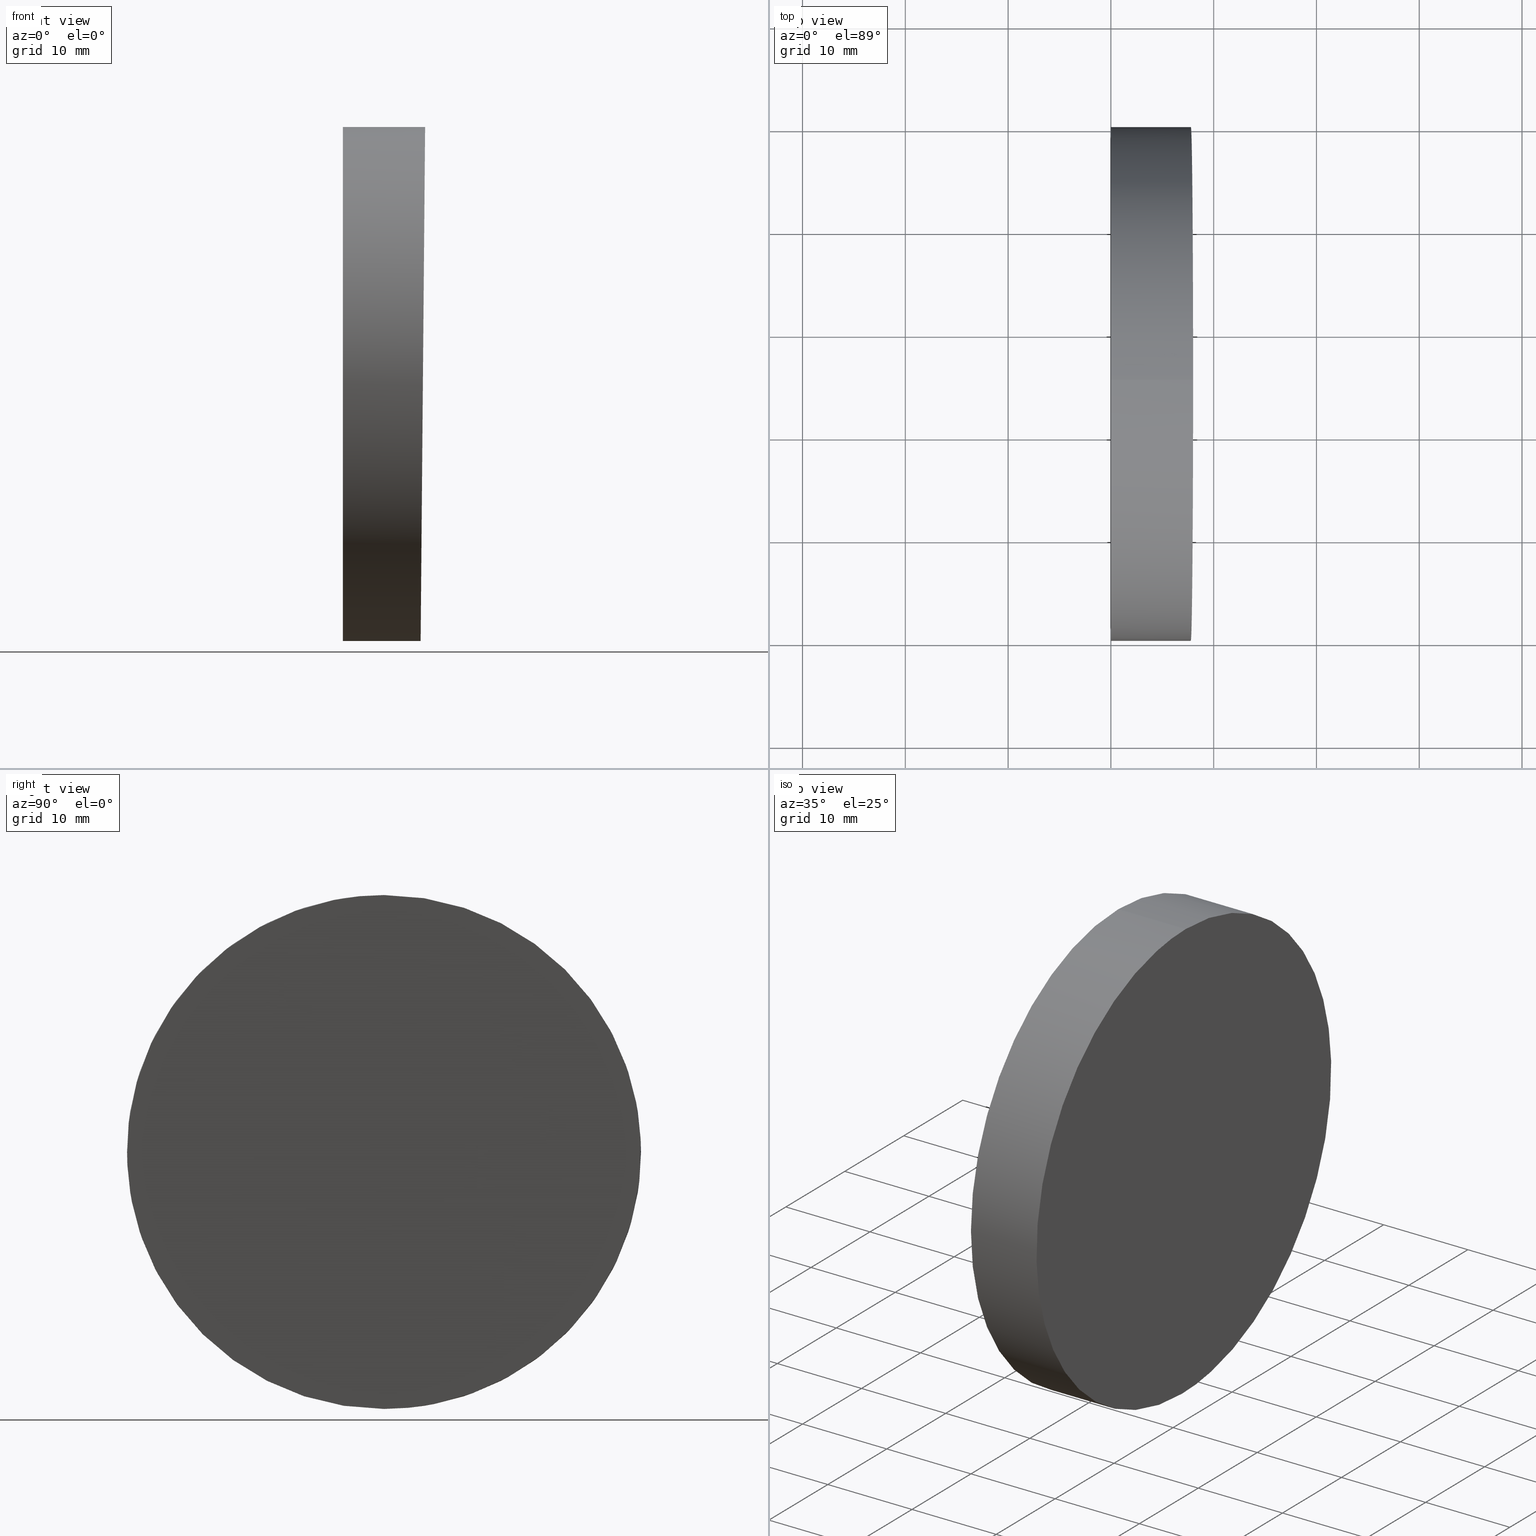
[diagram: canonical four-view strip — front | top / right | iso, engineering-drawing reading convention]
A machine part, canonical four-view strip (front | top / right | iso — engineering-drawing reading convention). The complete STEP part file that produces these views, byte-faithful:
ISO-10303-21;
HEADER;
FILE_DESCRIPTION (( 'STEP AP214' ),
    '1' );
FILE_NAME ('349512.STEP',
    '2019-08-13T03:34:06',
    ( 'user' ),
    ( '΢���й�' ),
    'SwSTEP 2.0',
    'SolidWorks 2016',
    '' );
FILE_SCHEMA (( 'AUTOMOTIVE_DESIGN' ));
ENDSEC;

DATA;
#1 = ADVANCED_FACE ( 'NONE', ( #23 ), #4, .T. ) ;
#2 = COLOUR_RGB ( '',1.000000000000000000, 1.000000000000000000, 1.000000000000000000 ) ;
#3 = COLOUR_RGB ( '',1.000000000000000000, 1.000000000000000000, 1.000000000000000000 ) ;
#4 = CYLINDRICAL_SURFACE ( 'NONE', #127, 25.00000000000000000 ) ;
#5 = VERTEX_POINT ( 'NONE', #78 ) ;
#6 = DIRECTION ( 'NONE',  ( -1.000000000000000000, -0.0000000000000000000, -0.0000000000000000000 ) ) ;
#7 = AXIS2_PLACEMENT_3D ( 'NONE', #101, #15, #48 ) ;
#8 =( NAMED_UNIT ( * ) SI_UNIT ( $, .STERADIAN. ) SOLID_ANGLE_UNIT ( ) );
#9 =( LENGTH_UNIT ( ) NAMED_UNIT ( * ) SI_UNIT ( .MILLI., .METRE. ) );
#10 = ORIENTED_EDGE ( 'NONE', *, *, #89, .T. ) ;
#11 =( GEOMETRIC_REPRESENTATION_CONTEXT ( 3 ) GLOBAL_UNCERTAINTY_ASSIGNED_CONTEXT ( ( #65 ) ) GLOBAL_UNIT_ASSIGNED_CONTEXT ( ( #140, #58, #8 ) ) REPRESENTATION_CONTEXT ( 'NONE', 'WORKASPACE' ) );
#12 = ORIENTED_EDGE ( 'NONE', *, *, #50, .F. ) ;
#13 =( BOUNDED_CURVE ( )  B_SPLINE_CURVE ( 3, ( #137, #85, #111, #124 ),
 .UNSPECIFIED., .F., .T. ) 
 B_SPLINE_CURVE_WITH_KNOTS ( ( 4, 4 ),
 ( 3.141592653589793100, 6.283185307179586200 ),
 .UNSPECIFIED. ) 
 CURVE ( )  GEOMETRIC_REPRESENTATION_ITEM ( )  RATIONAL_B_SPLINE_CURVE ( ( 1.000000000000000000, 0.3333333333333333700, 0.3333333333333333700, 1.000000000000000000 ) ) 
 REPRESENTATION_ITEM ( '' )  );
#14 = ORIENTED_EDGE ( 'NONE', *, *, #54, .T. ) ;
#15 = DIRECTION ( 'NONE',  ( -1.000000000000000000, -0.0000000000000000000, -0.0000000000000000000 ) ) ;
#16 = CARTESIAN_POINT ( 'NONE',  ( 7.563656610462413900, 25.00000000000000400, -25.00000000000000000 ) ) ;
#17 = CARTESIAN_POINT ( 'NONE',  ( 12.50000000000000000, 25.00000000000000000, 0.0000000000000000000 ) ) ;
#18 = PRODUCT_CONTEXT ( 'NONE', #40, 'mechanical' ) ;
#19 = ORIENTED_EDGE ( 'NONE', *, *, #50, .T. ) ;
#20 = SURFACE_SIDE_STYLE ('',( #53 ) ) ;
#21 = VECTOR ( 'NONE', #6, 1000.000000000000000 ) ;
#22 = PRESENTATION_STYLE_ASSIGNMENT (( #49 ) ) ;
#23 = FACE_OUTER_BOUND ( 'NONE', #55, .T. ) ;
#24 = PRESENTATION_LAYER_ASSIGNMENT (  '', '', ( #32 ) ) ;
#25 = DIRECTION ( 'NONE',  ( 0.0000000000000000000, 0.0000000000000000000, -1.000000000000000000 ) ) ;
#26 = DIRECTION ( 'NONE',  ( -1.000000000000000000, 0.0000000000000000000, 0.0000000000000000000 ) ) ;
#27 = PRESENTATION_STYLE_ASSIGNMENT (( #80 ) ) ;
#28 = MANIFOLD_SOLID_BREP ( '�г�-����2', #34 ) ;
#29 = CARTESIAN_POINT ( 'NONE',  ( 0.0000000000000000000, 25.00000000000000400, -25.00000000000000000 ) ) ;
#30 = PLANE ( 'NONE',  #61 ) ;
#31 = PRODUCT_DEFINITION_FORMATION_WITH_SPECIFIED_SOURCE ( '�κ�', '', #138, .NOT_KNOWN. ) ;
#32 = STYLED_ITEM ( 'NONE', ( #22 ), #120 ) ;
#33 = CIRCLE ( 'NONE', #131, 25.00000000000000000 ) ;
#34 = CLOSED_SHELL ( 'NONE', ( #1, #79, #43, #90 ) ) ;
#35 = DIRECTION ( 'NONE',  ( 0.0000000000000000000, 0.0000000000000000000, 1.000000000000000000 ) ) ;
#36 = ORIENTED_EDGE ( 'NONE', *, *, #70, .T. ) ;
#37 = CARTESIAN_POINT ( 'NONE',  ( 0.0000000000000000000, 0.0000000000000000000, 0.0000000000000000000 ) ) ;
#38 = PLANE ( 'NONE',  #119 ) ;
#39 = DIRECTION ( 'NONE',  ( -1.000000000000000000, -0.0000000000000000000, -0.0000000000000000000 ) ) ;
#40 = APPLICATION_CONTEXT ( 'automotive_design' ) ;
#41 = DIRECTION ( 'NONE',  ( -0.9999619230641714200, 0.0000000000000000000, 0.008726535498366983600 ) ) ;
#42 = EDGE_LOOP ( 'NONE', ( #19, #129 ) ) ;
#43 = ADVANCED_FACE ( 'NONE', ( #75 ), #30, .F. ) ;
#44 = CARTESIAN_POINT ( 'NONE',  ( 7.563656610462413900, -25.00000000000001100, -25.00000000000000000 ) ) ;
#45 = LINE ( 'NONE', #126, #132 ) ;
#46 = VERTEX_POINT ( 'NONE', #29 ) ;
#47 = UNCERTAINTY_MEASURE_WITH_UNIT (LENGTH_MEASURE( 1.000000000000000100E-005 ), #9, 'distance_accuracy_value', 'NONE');
#48 = DIRECTION ( 'NONE',  ( 0.0000000000000000000, 0.0000000000000000000, 1.000000000000000000 ) ) ;
#49 = SURFACE_STYLE_USAGE ( .BOTH. , #128 ) ;
#50 = EDGE_CURVE ( 'NONE', #5, #46, #33, .T. ) ;
#51 =( NAMED_UNIT ( * ) SI_UNIT ( $, .STERADIAN. ) SOLID_ANGLE_UNIT ( ) );
#52 = PRESENTATION_LAYER_ASSIGNMENT (  '', '', ( #64 ) ) ;
#53 = SURFACE_STYLE_FILL_AREA ( #92 ) ;
#54 = EDGE_CURVE ( 'NONE', #109, #95, #106, .T. ) ;
#55 = EDGE_LOOP ( 'NONE', ( #98, #36, #12, #66 ) ) ;
#56 = CARTESIAN_POINT ( 'NONE',  ( 5.204170427930421300E-015, 50.00000000000000000, -25.00000000000000000 ) ) ;
#57 = APPLICATION_PROTOCOL_DEFINITION ( 'draft international standard', 'automotive_design', 1998, #40 ) ;
#58 =( NAMED_UNIT ( * ) PLANE_ANGLE_UNIT ( ) SI_UNIT ( $, .RADIAN. ) );
#59 = DIRECTION ( 'NONE',  ( 0.008726535498366981900, 0.0000000000000000000, 0.9999619230641713100 ) ) ;
#60 = FILL_AREA_STYLE_COLOUR ( '', #2 ) ;
#61 = AXIS2_PLACEMENT_3D ( 'NONE', #116, #41, #59 ) ;
#62 = UNCERTAINTY_MEASURE_WITH_UNIT (LENGTH_MEASURE( 1.000000000000000100E-005 ), #105, 'distance_accuracy_value', 'NONE');
#63 = ORIENTED_EDGE ( 'NONE', *, *, #110, .F. ) ;
#64 = STYLED_ITEM ( 'NONE', ( #27 ), #28 ) ;
#65 = UNCERTAINTY_MEASURE_WITH_UNIT (LENGTH_MEASURE( 1.000000000000000100E-005 ), #140, 'distance_accuracy_value', 'NONE');
#66 = ORIENTED_EDGE ( 'NONE', *, *, #89, .F. ) ;
#67 = CARTESIAN_POINT ( 'NONE',  ( 0.0000000000000000000, 25.00000000000000000, 0.0000000000000000000 ) ) ;
#68 = CARTESIAN_POINT ( 'NONE',  ( 12.50000000000000000, 25.00000000000000000, 25.00000000000000000 ) ) ;
#69 = SHAPE_DEFINITION_REPRESENTATION ( #133, #120 ) ;
#70 = EDGE_CURVE ( 'NONE', #109, #46, #45, .T. ) ;
#71 = EDGE_LOOP ( 'NONE', ( #123, #14, #10, #63 ) ) ;
#72 =( NAMED_UNIT ( * ) PLANE_ANGLE_UNIT ( ) SI_UNIT ( $, .RADIAN. ) );
#73 = CYLINDRICAL_SURFACE ( 'NONE', #7, 25.00000000000000000 ) ;
#74 = CIRCLE ( 'NONE', #134, 25.00000000000000000 ) ;
#75 = FACE_OUTER_BOUND ( 'NONE', #84, .T. ) ;
#76 = DIRECTION ( 'NONE',  ( -1.000000000000000000, 0.0000000000000000000, 0.0000000000000000000 ) ) ;
#77 = APPLICATION_PROTOCOL_DEFINITION ( 'draft international standard', 'automotive_design', 1998, #88 ) ;
#78 = CARTESIAN_POINT ( 'NONE',  ( 0.0000000000000000000, 25.00000000000000000, 25.00000000000000000 ) ) ;
#79 = ADVANCED_FACE ( 'NONE', ( #135 ), #38, .F. ) ;
#80 = SURFACE_STYLE_USAGE ( .BOTH. , #20 ) ;
#81 = AXIS2_PLACEMENT_3D ( 'NONE', #37, #99, #87 ) ;
#82 = PRODUCT_DEFINITION_CONTEXT ( 'detailed design', #88, 'design' ) ;
#83 =( GEOMETRIC_REPRESENTATION_CONTEXT ( 3 ) GLOBAL_UNCERTAINTY_ASSIGNED_CONTEXT ( ( #47 ) ) GLOBAL_UNIT_ASSIGNED_CONTEXT ( ( #9, #72, #104 ) ) REPRESENTATION_CONTEXT ( 'NONE', 'WORKASPACE' ) );
#84 = EDGE_LOOP ( 'NONE', ( #91, #121 ) ) ;
#85 = CARTESIAN_POINT ( 'NONE',  ( 8.000000000000005300, 75.00000000000000000, 25.00000000000001100 ) ) ;
#86 = CARTESIAN_POINT ( 'NONE',  ( 8.000000000000005300, 25.00000000000000000, 25.00000000000000000 ) ) ;
#87 = DIRECTION ( 'NONE',  ( 1.000000000000000000, 0.0000000000000000000, 0.0000000000000000000 ) ) ;
#88 = APPLICATION_CONTEXT ( 'automotive_design' ) ;
#89 = EDGE_CURVE ( 'NONE', #95, #5, #107, .T. ) ;
#90 = ADVANCED_FACE ( 'NONE', ( #117 ), #73, .T. ) ;
#91 = ORIENTED_EDGE ( 'NONE', *, *, #122, .F. ) ;
#92 = FILL_AREA_STYLE ('',( #60 ) ) ;
#93 = PRODUCT_RELATED_PRODUCT_CATEGORY ( 'part', '', ( #138 ) ) ;
#94 = MECHANICAL_DESIGN_GEOMETRIC_PRESENTATION_REPRESENTATION (  '', ( #64 ), #83 ) ;
#95 = VERTEX_POINT ( 'NONE', #125 ) ;
#96 = MECHANICAL_DESIGN_GEOMETRIC_PRESENTATION_REPRESENTATION (  '', ( #32 ), #11 ) ;
#97 = PRODUCT_DEFINITION ( 'δ֪', '', #31, #82 ) ;
#98 = ORIENTED_EDGE ( 'NONE', *, *, #122, .T. ) ;
#99 = DIRECTION ( 'NONE',  ( 0.0000000000000000000, 0.0000000000000000000, 1.000000000000000000 ) ) ;
#100 = CARTESIAN_POINT ( 'NONE',  ( 7.563656610462413900, 25.00000000000000400, -25.00000000000000000 ) ) ;
#101 = CARTESIAN_POINT ( 'NONE',  ( 12.50000000000000000, 25.00000000000000000, 0.0000000000000000000 ) ) ;
#102 =( GEOMETRIC_REPRESENTATION_CONTEXT ( 3 ) GLOBAL_UNCERTAINTY_ASSIGNED_CONTEXT ( ( #62 ) ) GLOBAL_UNIT_ASSIGNED_CONTEXT ( ( #105, #115, #51 ) ) REPRESENTATION_CONTEXT ( 'NONE', 'WORKASPACE' ) );
#103 = DIRECTION ( 'NONE',  ( 0.0000000000000000000, 0.0000000000000000000, 1.000000000000000000 ) ) ;
#104 =( NAMED_UNIT ( * ) SI_UNIT ( $, .STERADIAN. ) SOLID_ANGLE_UNIT ( ) );
#105 =( LENGTH_UNIT ( ) NAMED_UNIT ( * ) SI_UNIT ( .MILLI., .METRE. ) );
#106 =( BOUNDED_CURVE ( )  B_SPLINE_CURVE ( 3, ( #16, #44, #108, #86 ),
 .UNSPECIFIED., .F., .T. ) 
 B_SPLINE_CURVE_WITH_KNOTS ( ( 4, 4 ),
 ( 0.0000000000000000000, 3.141592653589793100 ),
 .UNSPECIFIED. ) 
 CURVE ( )  GEOMETRIC_REPRESENTATION_ITEM ( )  RATIONAL_B_SPLINE_CURVE ( ( 1.000000000000000000, 0.3333333333333333700, 0.3333333333333333700, 1.000000000000000000 ) ) 
 REPRESENTATION_ITEM ( '' )  );
#107 = LINE ( 'NONE', #68, #21 ) ;
#108 = CARTESIAN_POINT ( 'NONE',  ( 8.000000000000005300, -25.00000000000001100, 25.00000000000000000 ) ) ;
#109 = VERTEX_POINT ( 'NONE', #100 ) ;
#110 = EDGE_CURVE ( 'NONE', #46, #5, #74, .T. ) ;
#111 = CARTESIAN_POINT ( 'NONE',  ( 7.563656610462413900, 75.00000000000000000, -25.00000000000000000 ) ) ;
#112 = DIRECTION ( 'NONE',  ( 1.000000000000000000, 0.0000000000000000000, 0.0000000000000000000 ) ) ;
#113 = CARTESIAN_POINT ( 'NONE',  ( 0.0000000000000000000, 25.00000000000000000, 0.0000000000000000000 ) ) ;
#114 = FILL_AREA_STYLE ('',( #136 ) ) ;
#115 =( NAMED_UNIT ( * ) PLANE_ANGLE_UNIT ( ) SI_UNIT ( $, .RADIAN. ) );
#116 = CARTESIAN_POINT ( 'NONE',  ( 8.000000000000005300, 50.00000000000000000, 25.00000000000000000 ) ) ;
#117 = FACE_OUTER_BOUND ( 'NONE', #71, .T. ) ;
#118 = DIRECTION ( 'NONE',  ( 0.0000000000000000000, 0.0000000000000000000, 1.000000000000000000 ) ) ;
#119 = AXIS2_PLACEMENT_3D ( 'NONE', #56, #112, #25 ) ;
#120 = ADVANCED_BREP_SHAPE_REPRESENTATION ( '349512', ( #28, #81 ), #102 ) ;
#121 = ORIENTED_EDGE ( 'NONE', *, *, #54, .F. ) ;
#122 = EDGE_CURVE ( 'NONE', #95, #109, #13, .T. ) ;
#123 = ORIENTED_EDGE ( 'NONE', *, *, #70, .F. ) ;
#124 = CARTESIAN_POINT ( 'NONE',  ( 7.563656610462413900, 25.00000000000000400, -25.00000000000000000 ) ) ;
#125 = CARTESIAN_POINT ( 'NONE',  ( 8.000000000000005300, 25.00000000000000000, 25.00000000000000000 ) ) ;
#126 = CARTESIAN_POINT ( 'NONE',  ( 12.50000000000000000, 25.00000000000000400, -25.00000000000000000 ) ) ;
#127 = AXIS2_PLACEMENT_3D ( 'NONE', #17, #130, #118 ) ;
#128 = SURFACE_SIDE_STYLE ('',( #139 ) ) ;
#129 = ORIENTED_EDGE ( 'NONE', *, *, #110, .T. ) ;
#130 = DIRECTION ( 'NONE',  ( -1.000000000000000000, -0.0000000000000000000, -0.0000000000000000000 ) ) ;
#131 = AXIS2_PLACEMENT_3D ( 'NONE', #113, #26, #103 ) ;
#132 = VECTOR ( 'NONE', #39, 1000.000000000000000 ) ;
#133 = PRODUCT_DEFINITION_SHAPE ( 'NONE', 'NONE',  #97 ) ;
#134 = AXIS2_PLACEMENT_3D ( 'NONE', #67, #76, #35 ) ;
#135 = FACE_OUTER_BOUND ( 'NONE', #42, .T. ) ;
#136 = FILL_AREA_STYLE_COLOUR ( '', #3 ) ;
#137 = CARTESIAN_POINT ( 'NONE',  ( 8.000000000000005300, 25.00000000000000000, 25.00000000000000000 ) ) ;
#138 = PRODUCT ( '349512', '349512', '', ( #18 ) ) ;
#139 = SURFACE_STYLE_FILL_AREA ( #114 ) ;
#140 =( LENGTH_UNIT ( ) NAMED_UNIT ( * ) SI_UNIT ( .MILLI., .METRE. ) );
ENDSEC;
END-ISO-10303-21;
